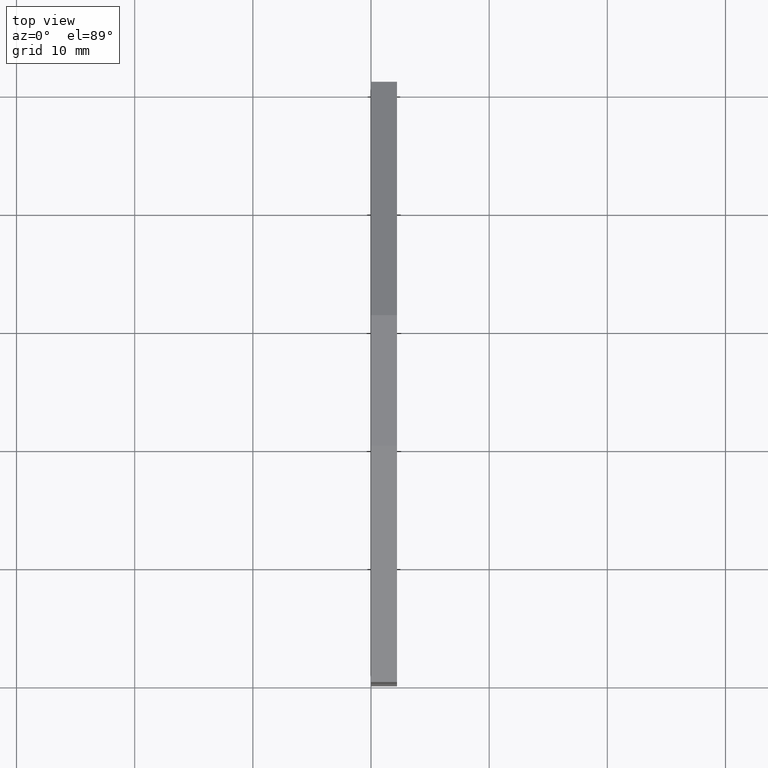
[diagram: clean part render]
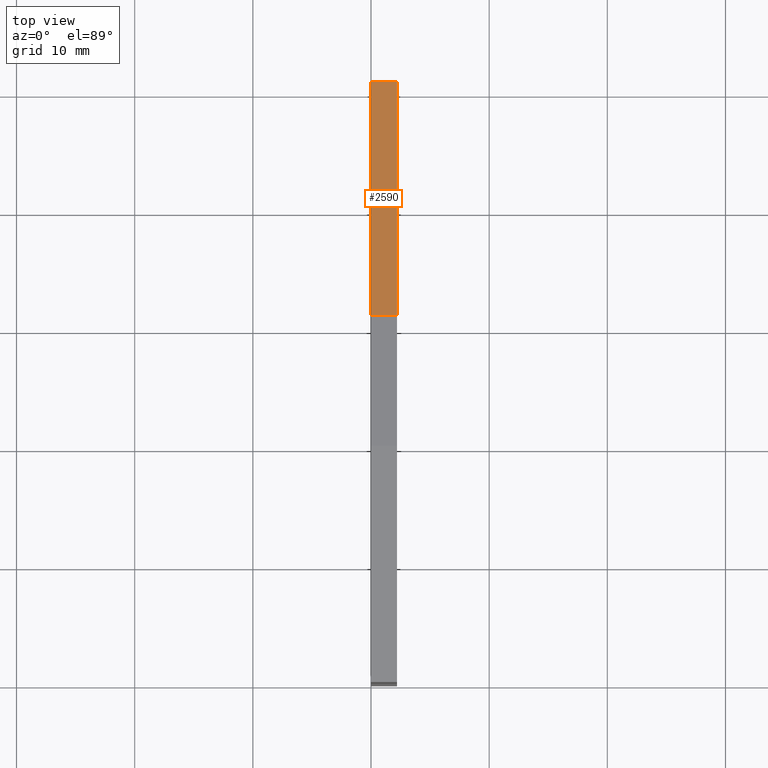
[diagram: same view with one face highlighted and labeled with its STEP entity id]
A machine part, top view. The second image highlights one B-rep face of the part: STEP entity #2590.
In plain terms, the highlighted planar face has unit normal (0, -0.342, -0.9397).
Its self-contained STEP definition (entity closure, byte-faithful):
#850=CARTESIAN_POINT('',(-11.9829730233949,35.517225,0.));
#860=VERTEX_POINT('',#850);
#890=CARTESIAN_POINT('',(0.,31.1557795014694,0.));
#900=DIRECTION('',(-0.939692620785908,0.342020143325669,0.));
#910=VECTOR('',#900,1.);
#920=LINE('',#890,#910);
#930=CARTESIAN_POINT('',(7.89999999999908,28.2804146507667,0.));
#940=VERTEX_POINT('',#930);
#950=EDGE_CURVE('',#940,#860,#920,.T.);
#2290=CARTESIAN_POINT('',(7.89999999999908,28.2804146507667,
-0.799999999999997));
#2300=DIRECTION('',(-0.342020143325669,-0.939692620785908,-0.));
#2310=DIRECTION('',(-0.939692620785908,0.342020143325669,0.));
#2320=AXIS2_PLACEMENT_3D('',#2290,#2300,#2310);
#2330=PLANE('',#2320);
#2340=ORIENTED_EDGE('',*,*,#950,.F.);
#2350=CARTESIAN_POINT('',(-11.9829730233949,35.517225,0.));
#2360=DIRECTION('',(0.,0.,1.));
#2370=VECTOR('',#2360,1.);
#2380=LINE('',#2350,#2370);
#2390=CARTESIAN_POINT('',(-11.9829730233949,35.517225,-2.2));
#2400=VERTEX_POINT('',#2390);
#2410=EDGE_CURVE('',#2400,#860,#2380,.T.);
#2420=ORIENTED_EDGE('',*,*,#2410,.T.);
#2430=CARTESIAN_POINT('',(0.,31.1557795014694,-2.2));
#2440=DIRECTION('',(-0.939692620785908,0.342020143325669,0.));
#2450=VECTOR('',#2440,1.);
#2460=LINE('',#2430,#2450);
#2470=CARTESIAN_POINT('',(7.89999999999908,28.2804146507667,-2.2));
#2480=VERTEX_POINT('',#2470);
#2490=EDGE_CURVE('',#2480,#2400,#2460,.T.);
#2500=ORIENTED_EDGE('',*,*,#2490,.T.);
#2510=CARTESIAN_POINT('',(7.89999999999908,28.2804146507667,0.));
#2520=DIRECTION('',(0.,0.,1.));
#2530=VECTOR('',#2520,1.);
#2540=LINE('',#2510,#2530);
#2550=EDGE_CURVE('',#2480,#940,#2540,.T.);
#2560=ORIENTED_EDGE('',*,*,#2550,.F.);
#2570=EDGE_LOOP('',(#2560,#2500,#2420,#2340));
#2580=FACE_OUTER_BOUND('',#2570,.T.);
#2590=ADVANCED_FACE('',(#2580),#2330,.F.);